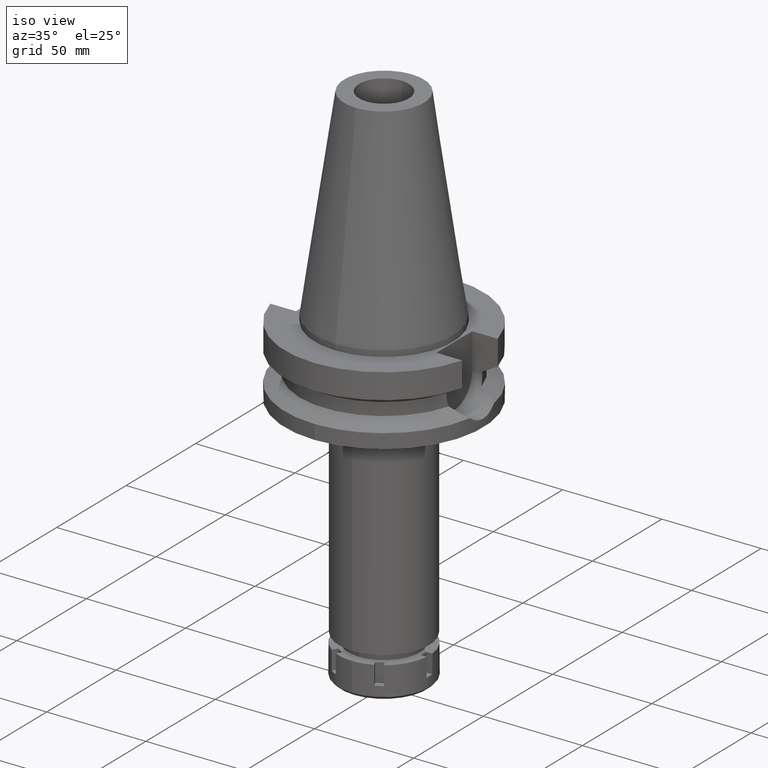
[diagram: clean part render]
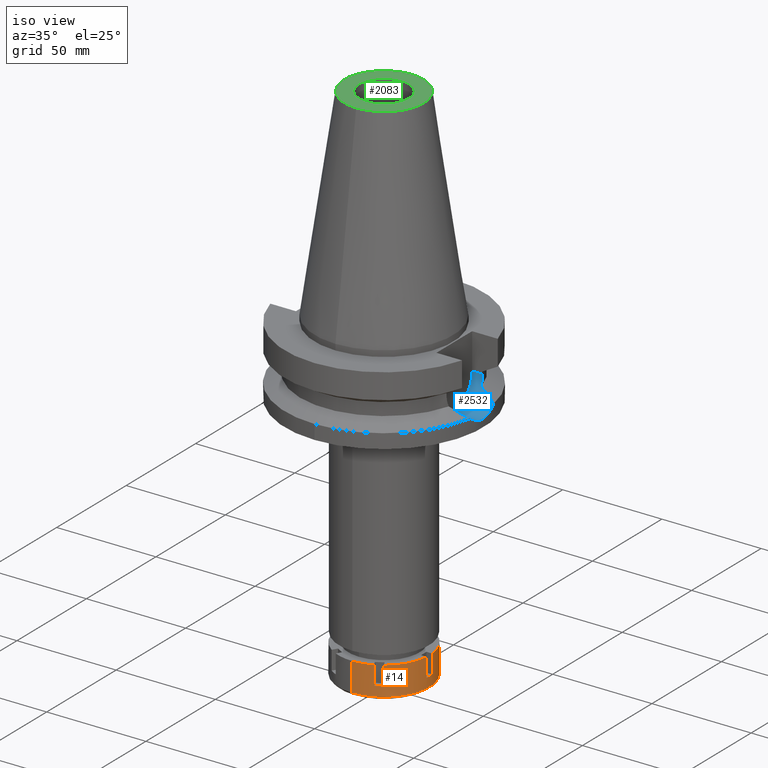
[diagram: same view with three faces highlighted in distinct colors, each labeled with its STEP entity id]
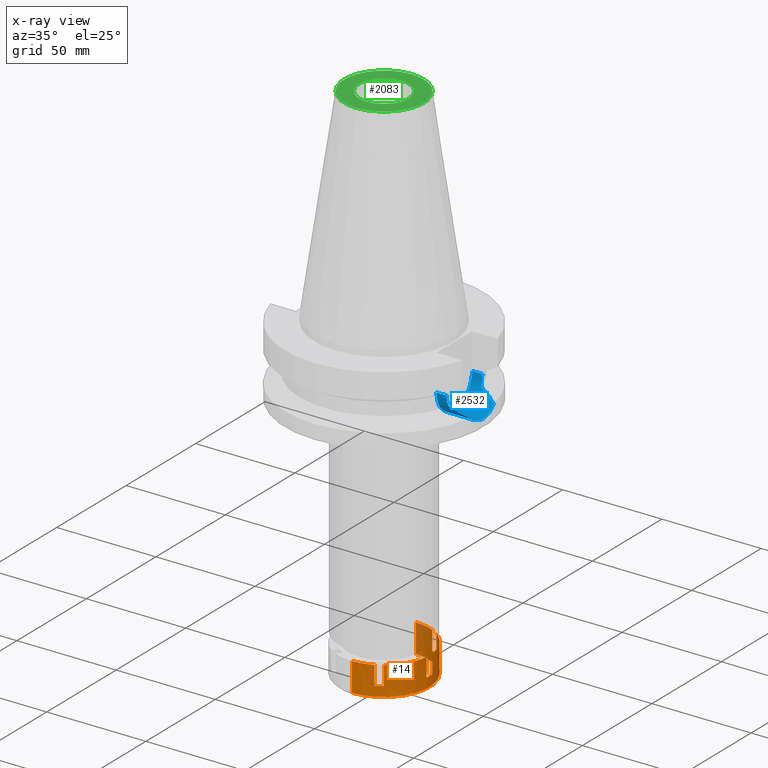
[diagram: x-ray of the same camera — body ghosted, the three highlighted faces saturated]
A machine part, iso view with three faces highlighted in distinct colors.
The next image is the same camera in x-ray (body ghosted, the three faces saturated) — at least one of them is partly hidden behind the body in this view.
Their STEP definitions:

[orange] entity #14 — the highlighted cylindrical surface (partial cylindrical patch) has radius 23 mm, axis along (0, 0, -1).
#12 = LINE ( 'NONE', #2010, #1643 ) ;
#14 = ADVANCED_FACE ( 'NONE', ( #3645 ), #1639, .T. ) ;
#69 = EDGE_CURVE ( 'NONE', #196, #1833, #2277, .T. ) ;
#102 = CARTESIAN_POINT ( 'NONE',  ( 9.724388429823001445, 20.84313483297999881, -9.500000000000000000 ) ) ;
#129 = EDGE_CURVE ( 'NONE', #2489, #904, #1917, .T. ) ;
#189 = VERTEX_POINT ( 'NONE', #3225 ) ;
#196 = VERTEX_POINT ( 'NONE', #1790 ) ;
#200 = CARTESIAN_POINT ( 'NONE',  ( 0.0000000000000000000, 0.0000000000000000000, 0.0000000000000000000 ) ) ;
#203 = ORIENTED_EDGE ( 'NONE', *, *, #410, .T. ) ;
#205 = AXIS2_PLACEMENT_3D ( 'NONE', #3634, #3376, #2776 ) ;
#208 = LINE ( 'NONE', #1062, #1368 ) ;
#216 = VERTEX_POINT ( 'NONE', #1515 ) ;
#239 = LINE ( 'NONE', #1123, #1992 ) ;
#340 = CIRCLE ( 'NONE', #3344, 23.00000000000000000 ) ;
#410 = EDGE_CURVE ( 'NONE', #3183, #1833, #2553, .T. ) ;
#412 = EDGE_CURVE ( 'NONE', #1208, #2771, #570, .T. ) ;
#414 = CARTESIAN_POINT ( 'NONE',  ( 0.0000000000000000000, 23.00000000000000000, 0.0000000000000000000 ) ) ;
#422 = CARTESIAN_POINT ( 'NONE',  ( 0.0000000000000000000, -23.00000000000000000, 0.0000000000000000000 ) ) ;
#438 = CARTESIAN_POINT ( 'NONE',  ( 0.0000000000000000000, 0.0000000000000000000, -9.500000000000000000 ) ) ;
#462 = VECTOR ( 'NONE', #2813, 1000.000000000000000 ) ;
#468 = CARTESIAN_POINT ( 'NONE',  ( 22.91287847478000117, -2.000000000000000000, 0.0000000000000000000 ) ) ;
#494 = ORIENTED_EDGE ( 'NONE', *, *, #2355, .F. ) ;
#516 = VECTOR ( 'NONE', #1225, 1000.000000000000000 ) ;
#540 = DIRECTION ( 'NONE',  ( 0.9962121075990957308, -0.08695652173912968297, 0.0000000000000000000 ) ) ;
#570 = CIRCLE ( 'NONE', #3138, 23.00000000000000000 ) ;
#577 = AXIS2_PLACEMENT_3D ( 'NONE', #200, #2487, #540 ) ;
#611 = DIRECTION ( 'NONE',  ( 0.0000000000000000000, 0.0000000000000000000, -1.000000000000000000 ) ) ;
#628 = CARTESIAN_POINT ( 'NONE',  ( 0.0000000000000000000, 0.0000000000000000000, 0.0000000000000000000 ) ) ;
#664 = VERTEX_POINT ( 'NONE', #1457 ) ;
#676 = ORIENTED_EDGE ( 'NONE', *, *, #69, .F. ) ;
#748 = CIRCLE ( 'NONE', #1047, 23.00000000000001066 ) ;
#755 = DIRECTION ( 'NONE',  ( 0.0000000000000000000, 0.0000000000000000000, -1.000000000000000000 ) ) ;
#835 = EDGE_CURVE ( 'NONE', #196, #904, #1467, .T. ) ;
#899 = CARTESIAN_POINT ( 'NONE',  ( 13.18849004495999999, 18.84313483298000236, 0.0000000000000000000 ) ) ;
#904 = VERTEX_POINT ( 'NONE', #1867 ) ;
#925 = AXIS2_PLACEMENT_3D ( 'NONE', #438, #973, #1574 ) ;
#973 = DIRECTION ( 'NONE',  ( 0.0000000000000000000, 0.0000000000000000000, -1.000000000000000000 ) ) ;
#1024 = EDGE_CURVE ( 'NONE', #1208, #1995, #239, .T. ) ;
#1034 = ORIENTED_EDGE ( 'NONE', *, *, #2029, .F. ) ;
#1047 = AXIS2_PLACEMENT_3D ( 'NONE', #1095, #1919, #1935 ) ;
#1062 = CARTESIAN_POINT ( 'NONE',  ( 9.724388429820001178, -20.84313483297999881, 0.0000000000000000000 ) ) ;
#1072 = DIRECTION ( 'NONE',  ( 0.0000000000000000000, 0.0000000000000000000, -1.000000000000000000 ) ) ;
#1095 = CARTESIAN_POINT ( 'NONE',  ( 0.0000000000000000000, 0.0000000000000000000, -9.500000000000000000 ) ) ;
#1111 = VECTOR ( 'NONE', #3622, 1000.000000000000000 ) ;
#1123 = CARTESIAN_POINT ( 'NONE',  ( 0.0000000000000000000, 23.00000000000000000, 0.0000000000000000000 ) ) ;
#1127 = DIRECTION ( 'NONE',  ( 0.0000000000000000000, 0.0000000000000000000, -1.000000000000000000 ) ) ;
#1149 = DIRECTION ( 'NONE',  ( 0.0000000000000000000, 0.0000000000000000000, 1.000000000000000000 ) ) ;
#1208 = VERTEX_POINT ( 'NONE', #414 ) ;
#1225 = DIRECTION ( 'NONE',  ( 0.0000000000000000000, 0.0000000000000000000, -1.000000000000000000 ) ) ;
#1257 = EDGE_CURVE ( 'NONE', #2211, #216, #3655, .T. ) ;
#1270 = CIRCLE ( 'NONE', #205, 23.00000000000000355 ) ;
#1276 = CARTESIAN_POINT ( 'NONE',  ( 0.0000000000000000000, 0.0000000000000000000, 0.0000000000000000000 ) ) ;
#1363 = EDGE_CURVE ( 'NONE', #2489, #664, #1996, .T. ) ;
#1368 = VECTOR ( 'NONE', #1563, 1000.000000000000000 ) ;
#1369 = ORIENTED_EDGE ( 'NONE', *, *, #3171, .F. ) ;
#1383 = CARTESIAN_POINT ( 'NONE',  ( 0.0000000000000000000, -23.00000000000000000, 0.0000000000000000000 ) ) ;
#1397 = EDGE_LOOP ( 'NONE', ( #494, #203, #676, #1795, #2695, #3090, #1632, #2464, #1034, #2220, #2935, #3484, #1430, #3209, #1369, #1448 ) ) ;
#1430 = ORIENTED_EDGE ( 'NONE', *, *, #1024, .F. ) ;
#1448 = ORIENTED_EDGE ( 'NONE', *, *, #2548, .T. ) ;
#1451 = CARTESIAN_POINT ( 'NONE',  ( 0.0000000000000000000, 23.00000000000000000, -14.50000000000000000 ) ) ;
#1457 = CARTESIAN_POINT ( 'NONE',  ( 13.18849004495999999, -18.84313483298000236, 0.0000000000000000000 ) ) ;
#1467 = CIRCLE ( 'NONE', #925, 23.00000000000000355 ) ;
#1471 = CARTESIAN_POINT ( 'NONE',  ( 13.18849004495999999, -18.84313483298000236, -9.500000000000000000 ) ) ;
#1515 = CARTESIAN_POINT ( 'NONE',  ( 0.0000000000000000000, -23.00000000000000000, -14.50000000000000000 ) ) ;
#1548 = CARTESIAN_POINT ( 'NONE',  ( 9.724388429822001356, 20.84313483297999881, 0.0000000000000000000 ) ) ;
#1563 = DIRECTION ( 'NONE',  ( 0.0000000000000000000, 0.0000000000000000000, -1.000000000000000000 ) ) ;
#1574 = DIRECTION ( 'NONE',  ( 0.9962121075990957308, 0.08695652173912968297, 0.0000000000000000000 ) ) ;
#1588 = VECTOR ( 'NONE', #2563, 1000.000000000000000 ) ;
#1591 = CARTESIAN_POINT ( 'NONE',  ( 0.0000000000000000000, 0.0000000000000000000, -14.50000000000000000 ) ) ;
#1594 = DIRECTION ( 'NONE',  ( 0.0000000000000000000, 1.000000000000000000, 0.0000000000000000000 ) ) ;
#1632 = ORIENTED_EDGE ( 'NONE', *, *, #1789, .F. ) ;
#1639 = CYLINDRICAL_SURFACE ( 'NONE', #2504, 23.00000000000000000 ) ;
#1643 = VECTOR ( 'NONE', #1149, 1000.000000000000000 ) ;
#1660 = CARTESIAN_POINT ( 'NONE',  ( 22.91287847478000117, -2.000000000000000000, 0.0000000000000000000 ) ) ;
#1701 = CARTESIAN_POINT ( 'NONE',  ( 22.91287847478000117, 2.000000000000000000, -9.500000000000000000 ) ) ;
#1705 = VECTOR ( 'NONE', #3065, 1000.000000000000000 ) ;
#1749 = EDGE_CURVE ( 'NONE', #216, #1995, #340, .T. ) ;
#1789 = EDGE_CURVE ( 'NONE', #2351, #664, #3346, .T. ) ;
#1790 = CARTESIAN_POINT ( 'NONE',  ( 22.91287847478000117, 2.000000000000000000, -9.500000000000000000 ) ) ;
#1795 = ORIENTED_EDGE ( 'NONE', *, *, #835, .T. ) ;
#1833 = VERTEX_POINT ( 'NONE', #3381 ) ;
#1840 = CARTESIAN_POINT ( 'NONE',  ( 9.724388429820001178, -20.84313483297999881, -9.500000000000000000 ) ) ;
#1867 = CARTESIAN_POINT ( 'NONE',  ( 22.91287847478000117, -2.000000000000000000, -9.500000000000000000 ) ) ;
#1895 = EDGE_CURVE ( 'NONE', #3509, #2211, #2973, .T. ) ;
#1917 = LINE ( 'NONE', #1660, #462 ) ;
#1919 = DIRECTION ( 'NONE',  ( 0.0000000000000000000, 0.0000000000000000000, -1.000000000000000000 ) ) ;
#1935 = DIRECTION ( 'NONE',  ( 0.4227994969487938182, 0.9062232536079875000, 0.0000000000000000000 ) ) ;
#1992 = VECTOR ( 'NONE', #1072, 1000.000000000000000 ) ;
#1995 = VERTEX_POINT ( 'NONE', #1451 ) ;
#1996 = CIRCLE ( 'NONE', #577, 23.00000000000000355 ) ;
#2010 = CARTESIAN_POINT ( 'NONE',  ( 9.724388429822001356, 20.84313483297999881, -9.500000000000000000 ) ) ;
#2029 = EDGE_CURVE ( 'NONE', #3509, #2808, #208, .T. ) ;
#2040 = DIRECTION ( 'NONE',  ( 0.4227994969487119392, -0.9062232536080258027, 0.0000000000000000000 ) ) ;
#2123 = AXIS2_PLACEMENT_3D ( 'NONE', #2966, #755, #3283 ) ;
#2157 = VERTEX_POINT ( 'NONE', #102 ) ;
#2211 = VERTEX_POINT ( 'NONE', #422 ) ;
#2220 = ORIENTED_EDGE ( 'NONE', *, *, #1895, .T. ) ;
#2277 = LINE ( 'NONE', #1701, #1588 ) ;
#2351 = VERTEX_POINT ( 'NONE', #1471 ) ;
#2355 = EDGE_CURVE ( 'NONE', #3183, #189, #3248, .T. ) ;
#2420 = DIRECTION ( 'NONE',  ( 0.0000000000000000000, 0.0000000000000000000, -1.000000000000000000 ) ) ;
#2457 = DIRECTION ( 'NONE',  ( 0.0000000000000000000, 0.0000000000000000000, 1.000000000000000000 ) ) ;
#2464 = ORIENTED_EDGE ( 'NONE', *, *, #3575, .T. ) ;
#2487 = DIRECTION ( 'NONE',  ( 0.0000000000000000000, 0.0000000000000000000, -1.000000000000000000 ) ) ;
#2489 = VERTEX_POINT ( 'NONE', #468 ) ;
#2504 = AXIS2_PLACEMENT_3D ( 'NONE', #2528, #1127, #3118 ) ;
#2528 = CARTESIAN_POINT ( 'NONE',  ( 0.0000000000000000000, 0.0000000000000000000, 0.0000000000000000000 ) ) ;
#2548 = EDGE_CURVE ( 'NONE', #2157, #189, #748, .T. ) ;
#2553 = CIRCLE ( 'NONE', #2123, 22.99999999999999289 ) ;
#2563 = DIRECTION ( 'NONE',  ( 0.0000000000000000000, 0.0000000000000000000, 1.000000000000000000 ) ) ;
#2695 = ORIENTED_EDGE ( 'NONE', *, *, #129, .F. ) ;
#2748 = CARTESIAN_POINT ( 'NONE',  ( 13.18849004495999999, -18.84313483298000236, -9.500000000000000000 ) ) ;
#2771 = VERTEX_POINT ( 'NONE', #1548 ) ;
#2776 = DIRECTION ( 'NONE',  ( 0.5734126106504978670, -0.8192667318687978373, 0.0000000000000000000 ) ) ;
#2803 = AXIS2_PLACEMENT_3D ( 'NONE', #628, #611, #2040 ) ;
#2808 = VERTEX_POINT ( 'NONE', #1840 ) ;
#2813 = DIRECTION ( 'NONE',  ( 0.0000000000000000000, 0.0000000000000000000, -1.000000000000000000 ) ) ;
#2935 = ORIENTED_EDGE ( 'NONE', *, *, #1257, .T. ) ;
#2959 = CARTESIAN_POINT ( 'NONE',  ( 9.724388429820001178, -20.84313483297999881, 0.0000000000000000000 ) ) ;
#2966 = CARTESIAN_POINT ( 'NONE',  ( 0.0000000000000000000, 0.0000000000000000000, 0.0000000000000000000 ) ) ;
#2973 = CIRCLE ( 'NONE', #2803, 23.00000000000000355 ) ;
#3065 = DIRECTION ( 'NONE',  ( 0.0000000000000000000, 0.0000000000000000000, 1.000000000000000000 ) ) ;
#3090 = ORIENTED_EDGE ( 'NONE', *, *, #1363, .T. ) ;
#3118 = DIRECTION ( 'NONE',  ( 0.0000000000000000000, -1.000000000000000000, 0.0000000000000000000 ) ) ;
#3138 = AXIS2_PLACEMENT_3D ( 'NONE', #1276, #2420, #1594 ) ;
#3171 = EDGE_CURVE ( 'NONE', #2157, #2771, #12, .T. ) ;
#3183 = VERTEX_POINT ( 'NONE', #3663 ) ;
#3209 = ORIENTED_EDGE ( 'NONE', *, *, #412, .T. ) ;
#3225 = CARTESIAN_POINT ( 'NONE',  ( 13.18849004495999999, 18.84313483298000236, -9.500000000000000000 ) ) ;
#3248 = LINE ( 'NONE', #899, #516 ) ;
#3283 = DIRECTION ( 'NONE',  ( 0.5734126106503841802, 0.8192667318688773292, 0.0000000000000000000 ) ) ;
#3344 = AXIS2_PLACEMENT_3D ( 'NONE', #1591, #2457, #3597 ) ;
#3346 = LINE ( 'NONE', #2748, #1705 ) ;
#3376 = DIRECTION ( 'NONE',  ( 0.0000000000000000000, 0.0000000000000000000, -1.000000000000000000 ) ) ;
#3381 = CARTESIAN_POINT ( 'NONE',  ( 22.91287847478000117, 2.000000000000000000, 0.0000000000000000000 ) ) ;
#3484 = ORIENTED_EDGE ( 'NONE', *, *, #1749, .T. ) ;
#3509 = VERTEX_POINT ( 'NONE', #2959 ) ;
#3575 = EDGE_CURVE ( 'NONE', #2351, #2808, #1270, .T. ) ;
#3597 = DIRECTION ( 'NONE',  ( 0.0000000000000000000, -1.000000000000000000, 0.0000000000000000000 ) ) ;
#3622 = DIRECTION ( 'NONE',  ( 0.0000000000000000000, 0.0000000000000000000, -1.000000000000000000 ) ) ;
#3634 = CARTESIAN_POINT ( 'NONE',  ( 0.0000000000000000000, 0.0000000000000000000, -9.500000000000000000 ) ) ;
#3645 = FACE_OUTER_BOUND ( 'NONE', #1397, .T. ) ;
#3655 = LINE ( 'NONE', #1383, #1111 ) ;
#3663 = CARTESIAN_POINT ( 'NONE',  ( 13.18849004495999999, 18.84313483298000236, 0.0000000000000000000 ) ) ;

[blue] entity #2532 — the highlighted cylindrical surface (edge-blend (fillet) strip) has radius 12.85 mm, axis along (1, 0, 0).
#3 = VERTEX_POINT ( 'NONE', #782 ) ;
#9 = CARTESIAN_POINT ( 'NONE',  ( 42.55071745611744660, -11.29929319511106023, -27.28707702801668233 ) ) ;
#11 = ORIENTED_EDGE ( 'NONE', *, *, #2137, .F. ) ;
#29 = CARTESIAN_POINT ( 'NONE',  ( 40.79434733663426726, 11.92110265460875951, -25.97065107314824317 ) ) ;
#85 = AXIS2_PLACEMENT_3D ( 'NONE', #1812, #3562, #997 ) ;
#90 = CARTESIAN_POINT ( 'NONE',  ( 45.65477777075565058, 10.26033523586332130, -28.88624133032739749 ) ) ;
#123 = CARTESIAN_POINT ( 'NONE',  ( 49.66531577319440061, -5.772453008917752371, -32.63570655734203996 ) ) ;
#125 = CARTESIAN_POINT ( 'NONE',  ( 40.51083188481999287, 12.84999999999999964, -22.03309742073675537 ) ) ;
#182 = EDGE_LOOP ( 'NONE', ( #311, #2031, #3299, #1308, #11, #533, #2951, #1844, #2367 ) ) ;
#204 = CARTESIAN_POINT ( 'NONE',  ( 49.75680721488465252, -4.924372200396224031, -33.01927248158009576 ) ) ;
#211 = B_SPLINE_CURVE_WITH_KNOTS ( 'NONE', 3,
 ( #1283, #2383, #3025, #3522, #1306, #954, #2102, #3245, #1832, #2425, #3305, #2121, #682, #3584 ),
 .UNSPECIFIED., .F., .F.,
 ( 4, 2, 2, 1, 1, 2, 2, 4 ),
 ( 0.0000000000000000000, 0.2499999999999948375, 0.3749999999999922839, 0.4374999999999911182, 0.4687499999999904521, 0.4843749999999901745, 0.4999999999999898970, 1.000000000000000000 ),
 .UNSPECIFIED. ) ;
#238 = CARTESIAN_POINT ( 'NONE',  ( 49.90869642992999644, 3.032807479149022267, -33.64331436775012918 ) ) ;
#311 = ORIENTED_EDGE ( 'NONE', *, *, #788, .T. ) ;
#359 = CARTESIAN_POINT ( 'NONE',  ( 46.36727526679569422, 9.974179417351670907, -29.25251000872249207 ) ) ;
#374 = CARTESIAN_POINT ( 'NONE',  ( 45.54427738086176447, 10.30287947436299945, -28.82941249520358795 ) ) ;
#409 = CARTESIAN_POINT ( 'NONE',  ( 40.60092910951219380, 12.56261850439502226, -23.85257851101207649 ) ) ;
#413 = CARTESIAN_POINT ( 'NONE',  ( 35.39999999999999858, 12.84999999999999964, -21.14999999999999858 ) ) ;
#490 = CARTESIAN_POINT ( 'NONE',  ( 40.68244639104836580, 12.29666286615228721, -24.88711474765173648 ) ) ;
#499 = CARTESIAN_POINT ( 'NONE',  ( 49.49360244385135843, 7.117060693934413429, -31.87766899412886090 ) ) ;
#518 = CARTESIAN_POINT ( 'NONE',  ( 49.38719044865590035, 7.838135701933852673, -31.37800184651396407 ) ) ;
#533 = ORIENTED_EDGE ( 'NONE', *, *, #2234, .T. ) ;
#583 = EDGE_CURVE ( 'NONE', #3008, #3, #2961, .T. ) ;
#635 = CARTESIAN_POINT ( 'NONE',  ( 48.71889692592597498, 8.868007900456344572, -30.45890750410888614 ) ) ;
#682 = CARTESIAN_POINT ( 'NONE',  ( 40.73816962952578535, -12.11682243061658859, -25.53412644538607523 ) ) ;
#688 = CARTESIAN_POINT ( 'NONE',  ( 49.79052572487567119, -4.572062755420076563, -33.15911172841049392 ) ) ;
#693 = VECTOR ( 'NONE', #831, 1000.000000000000000 ) ;
#712 = CARTESIAN_POINT ( 'NONE',  ( 40.60613812303787995, 12.54578004800032431, -23.92968102609641079 ) ) ;
#725 = CARTESIAN_POINT ( 'NONE',  ( 49.73403571952268720, -5.148397096957767261, -32.92466732320522738 ) ) ;
#742 = CARTESIAN_POINT ( 'NONE',  ( 49.26250064874000145, -8.556052234130000045, -30.73730776426999967 ) ) ;
#767 = CARTESIAN_POINT ( 'NONE',  ( 49.71771244280093782, -5.301720187127436645, -32.85659238518145742 ) ) ;
#777 = CARTESIAN_POINT ( 'NONE',  ( 49.98260905406998234, 1.500665619138225049, -33.93573820480884962 ) ) ;
#779 = CARTESIAN_POINT ( 'NONE',  ( 40.85052569294000335, 11.72538061688000077, -26.40718074535000426 ) ) ;
#782 = CARTESIAN_POINT ( 'NONE',  ( 49.26250064874000145, 8.556052234130000045, -30.73730776426999967 ) ) ;
#788 = EDGE_CURVE ( 'NONE', #3, #1500, #3231, .T. ) ;
#790 = CARTESIAN_POINT ( 'NONE',  ( 44.62925775102691972, -10.63815907006330619, -28.35864658413995798 ) ) ;
#792 = CARTESIAN_POINT ( 'NONE',  ( 49.80628532616985638, 4.396934166595673155, -33.22451764728783274 ) ) ;
#807 = CARTESIAN_POINT ( 'NONE',  ( 44.89588290465827214, -10.54427413037512906, -28.49587143876511419 ) ) ;
#831 = DIRECTION ( 'NONE',  ( 1.000000000000000000, -3.336643826789999529E-14, 0.0000000000000000000 ) ) ;
#924 = B_SPLINE_CURVE_WITH_KNOTS ( 'NONE', 3,
 ( #742, #1619, #2757, #2407, #123, #767, #725, #204, #1325, #1262, #3053, #2772, #1343, #688, #2696, #2450, #1017, #1001, #3031, #2214 ),
 .UNSPECIFIED., .F., .F.,
 ( 4, 2, 2, 2, 1, 1, 1, 1, 2, 2, 2, 4 ),
 ( 0.0000000000000000000, 0.2499999999999404365, 0.3749999999999105715, 0.4374999999998954725, 0.4687499999998887557, 0.4843749999998845923, 0.4921874999998832045, 0.4960937499998826494, 0.4980468749998828715, 0.4999999999998832045, 0.7499999999999416023, 1.000000000000000000 ),
 .UNSPECIFIED. ) ;
#930 = CARTESIAN_POINT ( 'NONE',  ( 46.86891036847952563, 9.761100970900653095, -29.51020943516141060 ) ) ;
#942 = CARTESIAN_POINT ( 'NONE',  ( 49.26250064874000145, -8.556052234130000045, -30.73730776426999967 ) ) ;
#954 = CARTESIAN_POINT ( 'NONE',  ( 40.56599794183718899, -12.67508828627306450, -23.26599944996664959 ) ) ;
#997 = DIRECTION ( 'NONE',  ( 0.0000000000000000000, 1.000000000000000000, 0.0000000000000000000 ) ) ;
#1001 = CARTESIAN_POINT ( 'NONE',  ( 49.98261131041361693, -1.500624886538419744, -33.93573978226026355 ) ) ;
#1017 = CARTESIAN_POINT ( 'NONE',  ( 49.91305551306805910, -3.031270827038059501, -33.66153124133568042 ) ) ;
#1022 = EDGE_CURVE ( 'NONE', #2794, #1255, #3667, .T. ) ;
#1033 = CARTESIAN_POINT ( 'NONE',  ( 40.51083188481999997, 12.84999999999999964, -21.14999999999999858 ) ) ;
#1168 = CARTESIAN_POINT ( 'NONE',  ( 48.17421731096948179, -9.180580984649372667, -30.17995623842555730 ) ) ;
#1206 = CARTESIAN_POINT ( 'NONE',  ( 49.26250064874000145, -8.556052234130000045, -30.73730776426999967 ) ) ;
#1211 = CARTESIAN_POINT ( 'NONE',  ( 49.26250064874000145, 8.556052234130000045, -30.73730776426999967 ) ) ;
#1232 = CARTESIAN_POINT ( 'NONE',  ( 45.80850800889532337, 10.20045534850263813, -28.96529400805786025 ) ) ;
#1255 = VERTEX_POINT ( 'NONE', #1033 ) ;
#1262 = CARTESIAN_POINT ( 'NONE',  ( 49.77979861138366857, -4.687619708294853638, -33.11458520024217478 ) ) ;
#1283 = CARTESIAN_POINT ( 'NONE',  ( 40.51083188481999997, -12.84999999999999964, -21.14999999999999858 ) ) ;
#1306 = CARTESIAN_POINT ( 'NONE',  ( 40.54944812473202376, -12.72805978480942457, -22.93052269365497864 ) ) ;
#1308 = ORIENTED_EDGE ( 'NONE', *, *, #2245, .T. ) ;
#1325 = CARTESIAN_POINT ( 'NONE',  ( 49.76776460763550602, -4.813848197125325079, -33.06469792018418019 ) ) ;
#1343 = CARTESIAN_POINT ( 'NONE',  ( 49.78971523551513911, -4.580896941077138962, -33.15574468994640256 ) ) ;
#1500 = VERTEX_POINT ( 'NONE', #3461 ) ;
#1509 = CARTESIAN_POINT ( 'NONE',  ( 45.52095493356967637, 10.31180833772056005, -28.81741746125721804 ) ) ;
#1571 = VERTEX_POINT ( 'NONE', #3517 ) ;
#1576 = DIRECTION ( 'NONE',  ( -1.000000000000000000, -3.510427359434999885E-14, 0.0000000000000000000 ) ) ;
#1619 = CARTESIAN_POINT ( 'NONE',  ( 49.38719230594260523, -7.838125008374380975, -31.37801138982431581 ) ) ;
#1622 = CARTESIAN_POINT ( 'NONE',  ( 40.51083188481999997, 12.84999999999999964, -21.14999999999999858 ) ) ;
#1640 = DIRECTION ( 'NONE',  ( 0.0000000000000000000, 0.0000000000000000000, -1.000000000000000000 ) ) ;
#1651 = CARTESIAN_POINT ( 'NONE',  ( 45.34795488205713809, -10.37743536144881595, -28.72843099741480088 ) ) ;
#1676 = CARTESIAN_POINT ( 'NONE',  ( 35.39999999999999858, -12.84999999999999964, -21.14999999999999858 ) ) ;
#1677 = CARTESIAN_POINT ( 'NONE',  ( 49.79170874925432599, 4.559128567776709495, -33.16402800635088965 ) ) ;
#1695 = AXIS2_PLACEMENT_3D ( 'NONE', #1979, #3355, #1640 ) ;
#1767 = CARTESIAN_POINT ( 'NONE',  ( 48.13354550996827186, 9.173298141217253843, -30.15909107443265569 ) ) ;
#1802 = CARTESIAN_POINT ( 'NONE',  ( 45.47364822759700331, -10.32986049036476572, -28.79308085105692072 ) ) ;
#1812 = CARTESIAN_POINT ( 'NONE',  ( 35.39999999999999858, 0.0000000000000000000, -21.14999999999999858 ) ) ;
#1832 = CARTESIAN_POINT ( 'NONE',  ( 40.59188576338534915, -12.59181613888018880, -23.71309950369803587 ) ) ;
#1839 = EDGE_CURVE ( 'NONE', #1571, #2341, #3610, .T. ) ;
#1844 = ORIENTED_EDGE ( 'NONE', *, *, #2439, .T. ) ;
#1869 = CARTESIAN_POINT ( 'NONE',  ( 40.51083188481999997, -12.84999999999999964, -21.14999999999999858 ) ) ;
#1904 = CARTESIAN_POINT ( 'NONE',  ( 40.54025138676031759, 12.75862549541255042, -22.93152005434224705 ) ) ;
#1928 = CARTESIAN_POINT ( 'NONE',  ( 45.41149930443869920, -10.35343463059610514, -28.76111513600022462 ) ) ;
#1930 = CARTESIAN_POINT ( 'NONE',  ( 49.79885500147746313, 4.480269389603221519, -33.19370440293146629 ) ) ;
#1958 = CARTESIAN_POINT ( 'NONE',  ( 49.93043543702997766, 2.648726359074033088, -33.73005955313167448 ) ) ;
#1979 = CARTESIAN_POINT ( 'NONE',  ( 35.39999999999999858, 0.0000000000000000000, -21.14999999999999858 ) ) ;
#2009 = EDGE_CURVE ( 'NONE', #1500, #1255, #2932, .T. ) ;
#2031 = ORIENTED_EDGE ( 'NONE', *, *, #2009, .T. ) ;
#2085 = LINE ( 'NONE', #1869, #2743 ) ;
#2092 = CARTESIAN_POINT ( 'NONE',  ( 40.85052569294000335, 11.72538061688000077, -26.40718074535000426 ) ) ;
#2102 = CARTESIAN_POINT ( 'NONE',  ( 40.57496242610245929, -12.64633064314174860, -23.43373649586409613 ) ) ;
#2121 = CARTESIAN_POINT ( 'NONE',  ( 40.65436025722827651, -12.39001373530014050, -24.66363152819931415 ) ) ;
#2137 = EDGE_CURVE ( 'NONE', #3392, #3230, #2085, .T. ) ;
#2153 = CARTESIAN_POINT ( 'NONE',  ( 40.61157027093148031, 12.52820949425047026, -24.00859467745382148 ) ) ;
#2214 = CARTESIAN_POINT ( 'NONE',  ( 50.00000025974999573, 1.774145817924999966E-14, -34.00000114470000057 ) ) ;
#2219 = CARTESIAN_POINT ( 'NONE',  ( 43.71205589239633582, -10.94529851844949953, -27.88622673543954278 ) ) ;
#2234 = EDGE_CURVE ( 'NONE', #3392, #1571, #211, .T. ) ;
#2235 = CARTESIAN_POINT ( 'NONE',  ( 50.00000025974999573, 1.774145817924999966E-14, -34.00000114470000057 ) ) ;
#2245 = EDGE_CURVE ( 'NONE', #2794, #3230, #2604, .T. ) ;
#2341 = VERTEX_POINT ( 'NONE', #942 ) ;
#2367 = ORIENTED_EDGE ( 'NONE', *, *, #583, .T. ) ;
#2383 = CARTESIAN_POINT ( 'NONE',  ( 40.51083188482000708, -12.85000000000000320, -21.59155125908098327 ) ) ;
#2407 = CARTESIAN_POINT ( 'NONE',  ( 49.62581554086832369, -6.100699783330162163, -32.46623685312815155 ) ) ;
#2414 = CARTESIAN_POINT ( 'NONE',  ( 40.51083188481999997, -12.84999999999999964, -21.14999999999999858 ) ) ;
#2425 = CARTESIAN_POINT ( 'NONE',  ( 40.59544857123437112, -12.58031941218523286, -23.76894563300123053 ) ) ;
#2439 = EDGE_CURVE ( 'NONE', #2341, #3008, #924, .T. ) ;
#2450 = CARTESIAN_POINT ( 'NONE',  ( 49.86088866505888717, -3.802344464582331440, -33.45151160997993145 ) ) ;
#2482 = CARTESIAN_POINT ( 'NONE',  ( 50.00000025974999573, 1.774145817924999966E-14, -34.00000114470000057 ) ) ;
#2485 = CARTESIAN_POINT ( 'NONE',  ( 42.60298043635962983, 11.31841078810769829, -27.31486803500052574 ) ) ;
#2522 = CARTESIAN_POINT ( 'NONE',  ( 49.82078931996939275, 4.230072290529120593, -33.28453423720266358 ) ) ;
#2532 = ADVANCED_FACE ( 'NONE', ( #3672 ), #3095, .F. ) ;
#2580 = CARTESIAN_POINT ( 'NONE',  ( 40.85052569294000335, -11.72538061688000077, -26.40718074535000426 ) ) ;
#2604 = CIRCLE ( 'NONE', #85, 12.84999999999999964 ) ;
#2641 = CARTESIAN_POINT ( 'NONE',  ( 46.11254386972156283, 10.07959440270284723, -29.12160614239724765 ) ) ;
#2659 = CARTESIAN_POINT ( 'NONE',  ( 44.15277387009012244, 10.83389904101250600, -28.11372406847988259 ) ) ;
#2696 = CARTESIAN_POINT ( 'NONE',  ( 49.79078946304657194, -4.569185635706867643, -33.16020745295149652 ) ) ;
#2743 = VECTOR ( 'NONE', #1576, 1000.000000000000000 ) ;
#2757 = CARTESIAN_POINT ( 'NONE',  ( 49.49360748612500771, -7.117022366528876987, -31.87769826589144984 ) ) ;
#2772 = CARTESIAN_POINT ( 'NONE',  ( 49.78849615495141734, -4.594160771162379753, -33.15068097418502191 ) ) ;
#2794 = VERTEX_POINT ( 'NONE', #413 ) ;
#2806 = CARTESIAN_POINT ( 'NONE',  ( 49.86956621714999471, 3.608177968554155512, -33.48463145057419155 ) ) ;
#2821 = CARTESIAN_POINT ( 'NONE',  ( 49.79347438492521860, 4.539752812145889216, -33.17136368397172674 ) ) ;
#2923 = CARTESIAN_POINT ( 'NONE',  ( 47.19289684631613824, 9.616051868880671094, -29.67652928504717025 ) ) ;
#2932 = B_SPLINE_CURVE_WITH_KNOTS ( 'NONE', 3,
 ( #2092, #29, #2978, #490, #3013, #3591, #3337, #2153, #712, #3608, #409, #1904, #125, #1622 ),
 .UNSPECIFIED., .F., .F.,
 ( 4, 2, 2, 1, 1, 2, 2, 4 ),
 ( 0.0000000000000000000, 0.2499999999999920619, 0.3749999999999889533, 0.4374999999999874545, 0.4687499999999865663, 0.4843749999999859557, 0.4999999999999853451, 1.000000000000000000 ),
 .UNSPECIFIED. ) ;
#2940 = CARTESIAN_POINT ( 'NONE',  ( 45.58852645989720997, 10.28587793574028986, -28.85216961808750824 ) ) ;
#2951 = ORIENTED_EDGE ( 'NONE', *, *, #1839, .T. ) ;
#2961 = B_SPLINE_CURVE_WITH_KNOTS ( 'NONE', 3,
 ( #2482, #3114, #777, #1958, #238, #2806, #3067, #2522, #792, #1930, #3688, #2821, #3664, #1677, #3653, #3088, #499, #518, #3382 ),
 .UNSPECIFIED., .F., .F.,
 ( 4, 2, 2, 1, 1, 1, 1, 1, 2, 2, 2, 4 ),
 ( 0.0000000000000000000, 0.2499999999999408806, 0.3749999999999113487, 0.4374999999998964162, 0.4687499999998889777, 0.4843749999998849254, 0.4921874999998825384, 0.4960937499998818723, 0.4980468749998815947, 0.4999999999998813727, 0.7499999999999406031, 1.000000000000000000 ),
 .UNSPECIFIED. ) ;
#2978 = CARTESIAN_POINT ( 'NONE',  ( 40.74530521662314442, 12.08734525800560355, -25.53455946903086726 ) ) ;
#3008 = VERTEX_POINT ( 'NONE', #2235 ) ;
#3013 = CARTESIAN_POINT ( 'NONE',  ( 40.66327750826377496, 12.35976744503744662, -24.67240287687921452 ) ) ;
#3025 = CARTESIAN_POINT ( 'NONE',  ( 40.51818735908894098, -12.82722126774884330, -22.03688626222736602 ) ) ;
#3031 = CARTESIAN_POINT ( 'NONE',  ( 50.00000025975000995, -0.7410656251115338433, -34.00000000000000000 ) ) ;
#3043 = CARTESIAN_POINT ( 'NONE',  ( 41.72591166032965759, -11.52209110050590013, -26.86058858319618636 ) ) ;
#3053 = CARTESIAN_POINT ( 'NONE',  ( 49.78562820797583299, -4.625197376720444176, -33.13877319678256583 ) ) ;
#3067 = CARTESIAN_POINT ( 'NONE',  ( 49.84837068522750059, 3.895670753622818339, -33.39815263638099196 ) ) ;
#3085 = CARTESIAN_POINT ( 'NONE',  ( 45.19864727449142094, -10.43327437534391677, -28.65163018592970445 ) ) ;
#3088 = CARTESIAN_POINT ( 'NONE',  ( 49.66987082480136451, 5.762061220520697802, -32.66234491577243659 ) ) ;
#3095 = CYLINDRICAL_SURFACE ( 'NONE', #1695, 12.85000000000000320 ) ;
#3114 = CARTESIAN_POINT ( 'NONE',  ( 50.00000025975000284, 0.7410749818545950829, -34.00000000000000711 ) ) ;
#3140 = CARTESIAN_POINT ( 'NONE',  ( 45.45376346329539530, -10.33741897416011746, -28.78285341246331797 ) ) ;
#3230 = VERTEX_POINT ( 'NONE', #1676 ) ;
#3231 = B_SPLINE_CURVE_WITH_KNOTS ( 'NONE', 3,
 ( #1211, #635, #1767, #2923, #930, #359, #2641, #1232, #90, #2940, #374, #1509, #2659, #2485, #779 ),
 .UNSPECIFIED., .F., .F.,
 ( 4, 2, 2, 1, 1, 1, 2, 2, 4 ),
 ( 0.0000000000000000000, 0.2499999999999670264, 0.3749999999999510947, 0.4374999999999431011, 0.4687499999999392153, 0.4843749999999383826, 0.4921874999999378275, 0.4999999999999372724, 1.000000000000000000 ),
 .UNSPECIFIED. ) ;
#3245 = CARTESIAN_POINT ( 'NONE',  ( 40.58662774857591415, -12.60877356366929369, -23.62931612648331026 ) ) ;
#3299 = ORIENTED_EDGE ( 'NONE', *, *, #1022, .F. ) ;
#3305 = CARTESIAN_POINT ( 'NONE',  ( 40.59737061726059437, -12.57411364517637331, -23.79856269430915816 ) ) ;
#3337 = CARTESIAN_POINT ( 'NONE',  ( 40.62483067706675399, 12.48524489601930476, -24.19332376313167998 ) ) ;
#3355 = DIRECTION ( 'NONE',  ( 1.000000000000000000, 0.0000000000000000000, 0.0000000000000000000 ) ) ;
#3363 = CARTESIAN_POINT ( 'NONE',  ( 44.08652366158886338, -10.82399127850445275, -28.07919682956623930 ) ) ;
#3382 = CARTESIAN_POINT ( 'NONE',  ( 49.26250064874000145, 8.556052234130000045, -30.73730776426999967 ) ) ;
#3392 = VERTEX_POINT ( 'NONE', #2414 ) ;
#3455 = CARTESIAN_POINT ( 'NONE',  ( 46.91867690740803454, -9.778675819256957169, -29.53630061612208024 ) ) ;
#3461 = CARTESIAN_POINT ( 'NONE',  ( 40.85052569294000335, 11.72538061688000077, -26.40718074535000426 ) ) ;
#3517 = CARTESIAN_POINT ( 'NONE',  ( 40.85052569294000335, -11.72538061688000077, -26.40718074535000426 ) ) ;
#3522 = CARTESIAN_POINT ( 'NONE',  ( 40.54025378189582085, -12.75731467226962046, -22.70686882111924731 ) ) ;
#3562 = DIRECTION ( 'NONE',  ( -1.000000000000000000, 0.0000000000000000000, 0.0000000000000000000 ) ) ;
#3584 = CARTESIAN_POINT ( 'NONE',  ( 40.85052569294000335, -11.72538061688000077, -26.40718074535000426 ) ) ;
#3591 = CARTESIAN_POINT ( 'NONE',  ( 40.63720027269733492, 12.44499102500596699, -24.35263434037272035 ) ) ;
#3608 = CARTESIAN_POINT ( 'NONE',  ( 40.60257244295487311, 12.55730800210168496, -23.87713024258036754 ) ) ;
#3610 = B_SPLINE_CURVE_WITH_KNOTS ( 'NONE', 3,
 ( #2580, #3043, #9, #2219, #3363, #790, #807, #3085, #1651, #1928, #3140, #1802, #3455, #1168, #1206 ),
 .UNSPECIFIED., .F., .F.,
 ( 4, 2, 2, 1, 1, 1, 2, 2, 4 ),
 ( 0.0000000000000000000, 0.2500000000000003331, 0.3750000000000014988, 0.4375000000000023315, 0.4687500000000027756, 0.4843750000000040523, 0.4921875000000048295, 0.5000000000000055511, 1.000000000000000000 ),
 .UNSPECIFIED. ) ;
#3653 = CARTESIAN_POINT ( 'NONE',  ( 49.73972721055591251, 5.127761864821858140, -32.94800215639804009 ) ) ;
#3654 = CARTESIAN_POINT ( 'NONE',  ( 35.39999999999999858, 12.84999999999999964, -21.14999999999999858 ) ) ;
#3664 = CARTESIAN_POINT ( 'NONE',  ( 49.79239168047003972, 4.551645640510676216, -33.16686574697915546 ) ) ;
#3667 = LINE ( 'NONE', #3654, #693 ) ;
#3672 = FACE_OUTER_BOUND ( 'NONE', #182, .T. ) ;
#3688 = CARTESIAN_POINT ( 'NONE',  ( 49.79509525718310670, 4.521911686858223867, -33.17809616899294411 ) ) ;

[green] entity #2083 — the highlighted planar face has unit normal (0, 0, -1).
#71 = CARTESIAN_POINT ( 'NONE',  ( 0.0000000000000000000, 20.07942971896000017, 101.7999999999999972 ) ) ;
#77 = VERTEX_POINT ( 'NONE', #1669 ) ;
#89 = EDGE_CURVE ( 'NONE', #519, #2878, #2063, .T. ) ;
#173 = DIRECTION ( 'NONE',  ( 0.0000000000000000000, 0.0000000000000000000, 1.000000000000000000 ) ) ;
#236 = ORIENTED_EDGE ( 'NONE', *, *, #89, .F. ) ;
#254 = CARTESIAN_POINT ( 'NONE',  ( 0.0000000000000000000, 1.847992019912999597E-14, 101.7999999999999972 ) ) ;
#298 = EDGE_LOOP ( 'NONE', ( #2719, #846 ) ) ;
#472 = CARTESIAN_POINT ( 'NONE',  ( 0.0000000000000000000, 2.471337240678999545E-14, 101.7999999999999972 ) ) ;
#477 = DIRECTION ( 'NONE',  ( 0.0000000000000000000, 1.000000000000000000, 0.0000000000000000000 ) ) ;
#519 = VERTEX_POINT ( 'NONE', #550 ) ;
#550 = CARTESIAN_POINT ( 'NONE',  ( 0.0000000000000000000, -20.07942971896000017, 101.7999999999999972 ) ) ;
#579 = AXIS2_PLACEMENT_3D ( 'NONE', #254, #834, #847 ) ;
#809 = AXIS2_PLACEMENT_3D ( 'NONE', #1522, #1503, #2037 ) ;
#828 = DIRECTION ( 'NONE',  ( 0.0000000000000000000, 1.000000000000000000, 0.0000000000000000000 ) ) ;
#834 = DIRECTION ( 'NONE',  ( 0.0000000000000000000, 0.0000000000000000000, -1.000000000000000000 ) ) ;
#846 = ORIENTED_EDGE ( 'NONE', *, *, #2352, .F. ) ;
#847 = DIRECTION ( 'NONE',  ( 0.0000000000000000000, -1.000000000000000000, 0.0000000000000000000 ) ) ;
#856 = AXIS2_PLACEMENT_3D ( 'NONE', #1957, #3397, #828 ) ;
#1039 = DIRECTION ( 'NONE',  ( 0.0000000000000000000, -1.000000000000000000, 0.0000000000000000000 ) ) ;
#1282 = AXIS2_PLACEMENT_3D ( 'NONE', #1333, #173, #477 ) ;
#1333 = CARTESIAN_POINT ( 'NONE',  ( 0.0000000000000000000, 2.629806536488999751E-14, 101.7999999999999972 ) ) ;
#1468 = EDGE_LOOP ( 'NONE', ( #3556, #236 ) ) ;
#1474 = AXIS2_PLACEMENT_3D ( 'NONE', #472, #1604, #1039 ) ;
#1503 = DIRECTION ( 'NONE',  ( 0.0000000000000000000, 0.0000000000000000000, 1.000000000000000000 ) ) ;
#1522 = CARTESIAN_POINT ( 'NONE',  ( 0.0000000000000000000, 2.629806536488999751E-14, 101.7999999999999972 ) ) ;
#1604 = DIRECTION ( 'NONE',  ( 0.0000000000000000000, 0.0000000000000000000, -1.000000000000000000 ) ) ;
#1669 = CARTESIAN_POINT ( 'NONE',  ( 0.0000000000000000000, 12.50000000000000000, 101.7999999999999972 ) ) ;
#1723 = CARTESIAN_POINT ( 'NONE',  ( 0.0000000000000000000, -12.50000000000000000, 101.7999999999999972 ) ) ;
#1957 = CARTESIAN_POINT ( 'NONE',  ( 0.0000000000000000000, 1.847992019912999597E-14, 101.7999999999999972 ) ) ;
#2037 = DIRECTION ( 'NONE',  ( 0.0000000000000000000, -1.000000000000000000, 0.0000000000000000000 ) ) ;
#2063 = CIRCLE ( 'NONE', #579, 20.07942971896000017 ) ;
#2083 = ADVANCED_FACE ( 'NONE', ( #2737, #2469 ), #3035, .F. ) ;
#2352 = EDGE_CURVE ( 'NONE', #2360, #77, #2663, .T. ) ;
#2360 = VERTEX_POINT ( 'NONE', #1723 ) ;
#2415 = CIRCLE ( 'NONE', #1282, 12.50000000000000000 ) ;
#2469 = FACE_BOUND ( 'NONE', #298, .T. ) ;
#2657 = CIRCLE ( 'NONE', #856, 20.07942971896000017 ) ;
#2663 = CIRCLE ( 'NONE', #809, 12.50000000000000000 ) ;
#2719 = ORIENTED_EDGE ( 'NONE', *, *, #3019, .F. ) ;
#2737 = FACE_OUTER_BOUND ( 'NONE', #1468, .T. ) ;
#2878 = VERTEX_POINT ( 'NONE', #71 ) ;
#3019 = EDGE_CURVE ( 'NONE', #77, #2360, #2415, .T. ) ;
#3035 = PLANE ( 'NONE',  #1474 ) ;
#3219 = EDGE_CURVE ( 'NONE', #2878, #519, #2657, .T. ) ;
#3397 = DIRECTION ( 'NONE',  ( 0.0000000000000000000, 0.0000000000000000000, -1.000000000000000000 ) ) ;
#3556 = ORIENTED_EDGE ( 'NONE', *, *, #3219, .F. ) ;